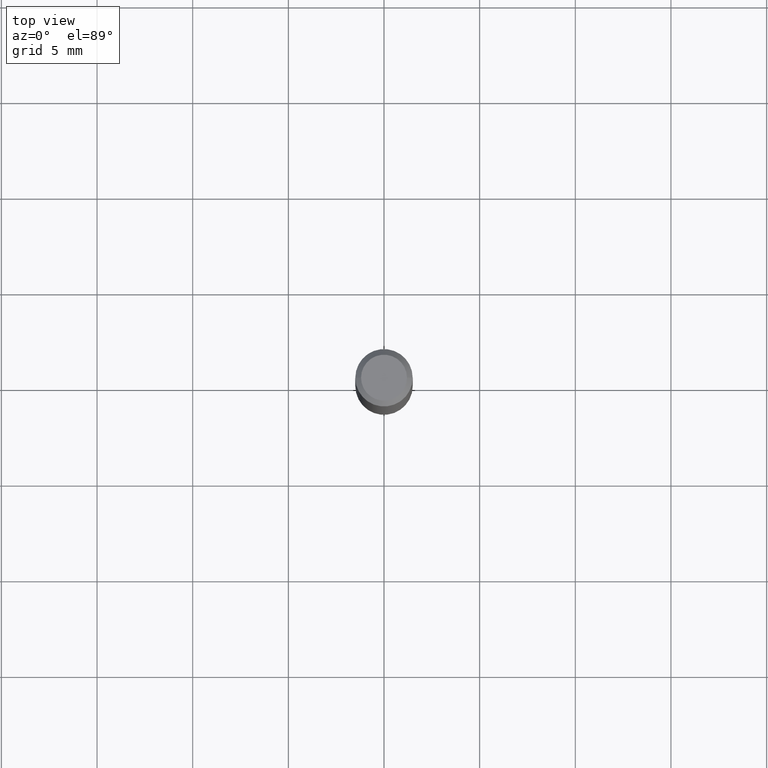
[diagram: clean part render]
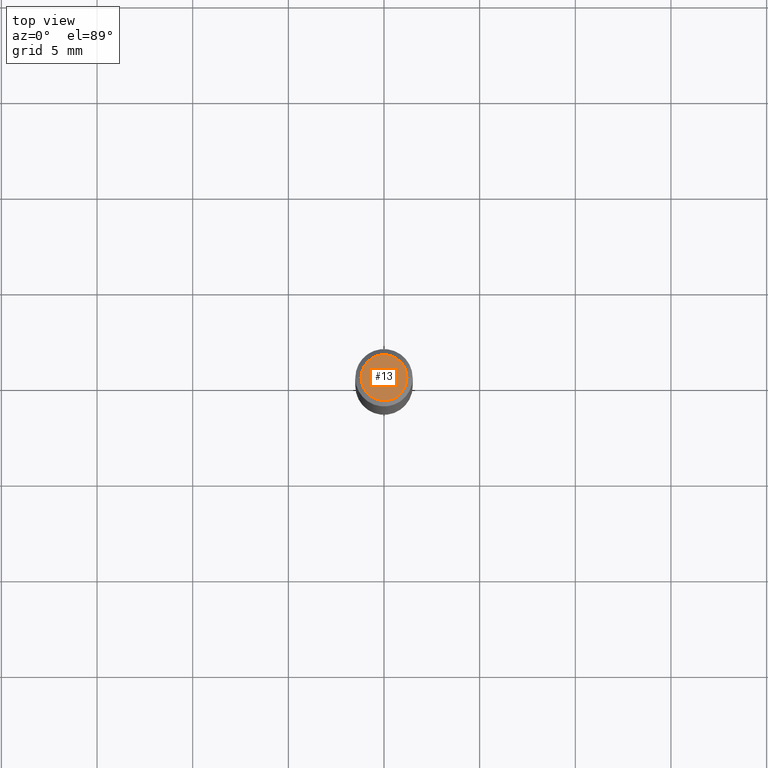
[diagram: same view with one face highlighted and labeled with its STEP entity id]
A machine part, top view. The second image highlights one B-rep face of the part: STEP entity #13.
In plain terms, the highlighted planar face has unit normal (0, -0, -1).
Its self-contained STEP definition (entity closure, byte-faithful):
#10 = EDGE_CURVE ( 'NONE', #390, #226, #368, .T. ) ;
#13 = ADVANCED_FACE ( 'NONE', ( #482 ), #489, .F. ) ;
#29 = CARTESIAN_POINT ( 'NONE',  ( 8.265746106709734507E-48, -1.180129479067563789E-33, -3.380025165646692144E-19 ) ) ;
#54 = EDGE_CURVE ( 'NONE', #226, #390, #60, .T. ) ;
#60 = CIRCLE ( 'NONE', #429, 0.04724000000000000421 ) ;
#63 = DIRECTION ( 'NONE',  ( 1.000000000000000000, -6.982962677686266711E-15, 4.876185090822587894E-29 ) ) ;
#87 = DIRECTION ( 'NONE',  ( 1.000000000000000000, -6.982962677686266711E-15, 4.876185090822587894E-29 ) ) ;
#102 = CARTESIAN_POINT ( 'NONE',  ( 4.132873053354867254E-48, -5.900647395337818946E-34, -1.690012582823346072E-19 ) ) ;
#107 = AXIS2_PLACEMENT_3D ( 'NONE', #102, #299, #364 ) ;
#149 = DIRECTION ( 'NONE',  ( -2.445468806185136597E-29, 3.491481338843145583E-15, 1.000000000000000000 ) ) ;
#150 = ORIENTED_EDGE ( 'NONE', *, *, #10, .T. ) ;
#158 = EDGE_LOOP ( 'NONE', ( #196, #150 ) ) ;
#176 = CARTESIAN_POINT ( 'NONE',  ( 8.265746106709734507E-48, -1.180129479067563789E-33, -3.380025165646692144E-19 ) ) ;
#196 = ORIENTED_EDGE ( 'NONE', *, *, #54, .T. ) ;
#221 = CARTESIAN_POINT ( 'NONE',  ( 0.04724000000000000421, -3.852183633974369345E-16, -3.380025165621689721E-19 ) ) ;
#226 = VERTEX_POINT ( 'NONE', #392 ) ;
#280 = AXIS2_PLACEMENT_3D ( 'NONE', #29, #149, #63 ) ;
#299 = DIRECTION ( 'NONE',  ( 2.438088387897960049E-29, -3.491481338843145188E-15, -1.000000000000000000 ) ) ;
#364 = DIRECTION ( 'NONE',  ( -1.000000000000000000, 6.982962677686265922E-15, -4.876176775795935793E-29 ) ) ;
#368 = CIRCLE ( 'NONE', #280, 0.04724000000000000421 ) ;
#390 = VERTEX_POINT ( 'NONE', #221 ) ;
#392 = CARTESIAN_POINT ( 'NONE',  ( -0.04724000000000000421, 3.504923541997677355E-16, -3.380025165670481712E-19 ) ) ;
#429 = AXIS2_PLACEMENT_3D ( 'NONE', #176, #473, #87 ) ;
#473 = DIRECTION ( 'NONE',  ( -2.445468806185136597E-29, 3.491481338843145583E-15, 1.000000000000000000 ) ) ;
#482 = FACE_OUTER_BOUND ( 'NONE', #158, .T. ) ;
#489 = PLANE ( 'NONE',  #107 ) ;